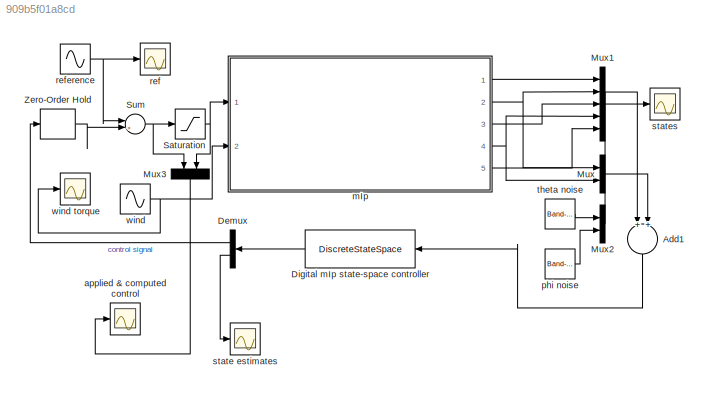
MODEL slx_909b5f01a8cd
KIND model
CONFIG AbsTol = auto
CONFIG EnableMultiTasking = off
CONFIG FixedStep = auto
CONFIG MaxStep = auto
CONFIG MinStep = auto
CONFIG RelTol = 1e-3
CONFIG SampleTimeConstraint = Unconstrained
CONFIG Solver = ode45
CONFIG SolverName = ode45
CONFIG StartTime = 0.0
CONFIG StopTime = 10.0
BLOCK [Sum] Add1
  InputSameDT = off
  Inputs = 2
  OutDataTypeStr = Inherit: Inherit via internal rule
  Ports = [2, 1]
  SaturateOnIntegerOverflow = off
BLOCK [Demux] Demux
  DisplayOption = bar
  Outputs = [1 5]
  Ports = [1, 2]
BLOCK [DiscreteStateSpace] Digital mIp state-space controller
  A = ALCBKLDmIp
  B = LLDmIp
  C = [-KLDmIp; eye(5)]
  D = zeros(6,2)
  SampleTime = 0.005
BLOCK [Mux] Mux
  DisplayOption = bar
  Inputs = 2
  Ports = [2, 1]
BLOCK [Mux] Mux1
  DisplayOption = bar
  Inputs = 5
  Ports = [5, 1]
BLOCK [Mux] Mux2
  DisplayOption = bar
  Inputs = 2
  Ports = [2, 1]
BLOCK [Mux] Mux3
  DisplayOption = bar
  Inputs = 2
  Ports = [2, 1]
BLOCK [Saturate] Saturation
  InputPortMap = u0
  LowerLimit = -6
  Ports = [1, 1]
  UpperLimit = 6
BLOCK [Sum] Sum
  IconShape = round
  InputSameDT = off
  Inputs = |++
  OutDataTypeStr = Inherit: Inherit via internal rule
  Ports = [2, 1]
  SaturateOnIntegerOverflow = off
BLOCK [ZeroOrderHold] Zero-Order Hold
  SampleTime = -1
  Tag = zero-order hold
BLOCK [Scope] applied & computed control
  Floating = off
  NumInputPorts = 1
  Ports = [1]
  ScopeSpecificationString = Simulink.scopes.TimeScopeBlockCfg('CurrentConfiguration', extmgr.ConfigurationSet(extmgr.Configuration('Core','General UI',true),extmgr.Configuration('Core','Source UI',true),extmgr.Configuration('Sources','WiredSimulink',true,'DataLoggingVariableName','ScopeData1'),extmgr.Configuration('Visuals','Time Domain',true,'SerializedDisplays',{struct('MinYLimReal','-9.65626','MaxYLimReal','12.964','YLabe...<+1397ch>
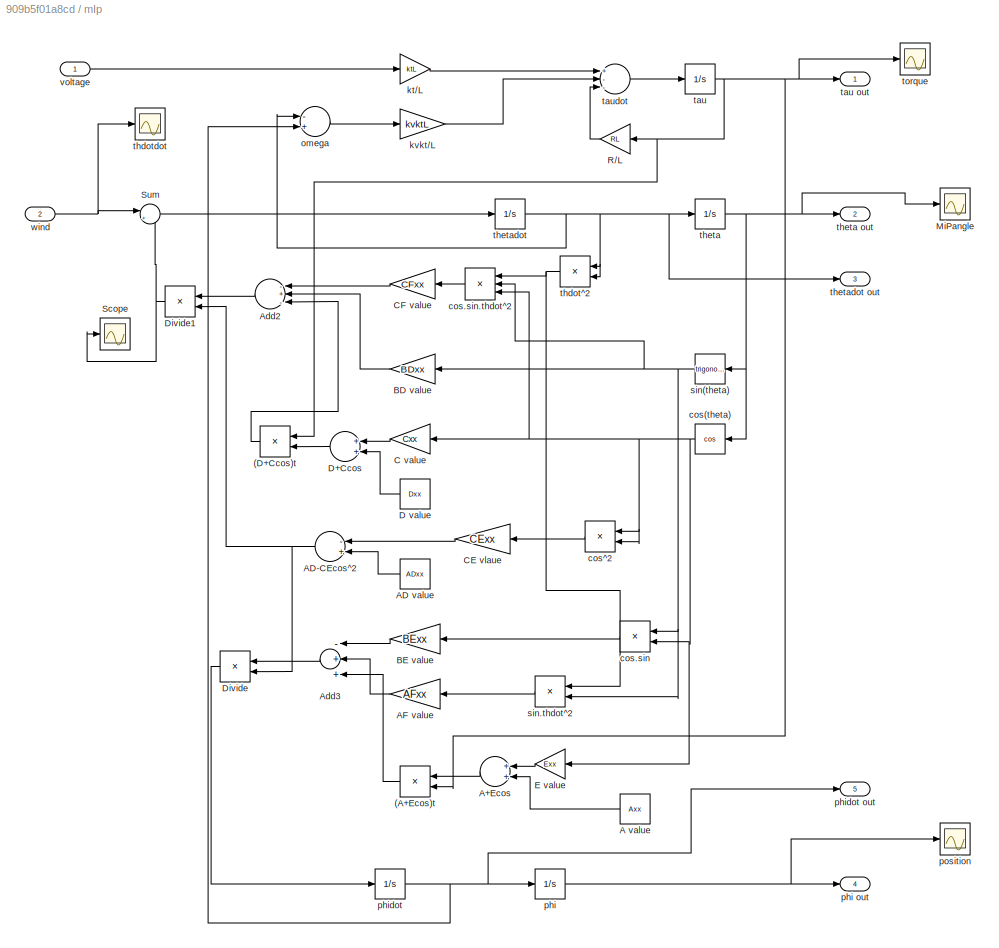
BLOCK [SubSystem] mIp
  Ports = [2, 5]
  RequestExecContextInheritance = off
BLOCK [Product] mIp/(A+Ecos)t
  InputSameDT = off
  OutDataTypeStr = Inherit: Inherit via internal rule
  Ports = [2, 1]
  RndMeth = Floor
  SaturateOnIntegerOverflow = off
BLOCK [Product] mIp/(D+Ccos)t
  InputSameDT = off
  OutDataTypeStr = Inherit: Inherit via internal rule
  Ports = [2, 1]
  RndMeth = Floor
  SaturateOnIntegerOverflow = off
BLOCK [Constant] mIp/A value
  Value = Axx
BLOCK [Sum] mIp/A+Ecos
  InputSameDT = off
  Inputs = 2
  OutDataTypeStr = Inherit: Inherit via internal rule
  Ports = [2, 1]
  SaturateOnIntegerOverflow = off
BLOCK [Constant] mIp/AD value
  Value = ADxx
BLOCK [Sum] mIp/AD-CEcos^2
  InputSameDT = off
  Inputs = -+
  OutDataTypeStr = Inherit: Inherit via internal rule
  Ports = [2, 1]
  SaturateOnIntegerOverflow = off
BLOCK [Gain] mIp/AF value
  Gain = AFxx
  OutDataTypeStr = Inherit: Inherit via internal rule
  ParamDataTypeStr = Inherit: Inherit via internal rule
  SaturateOnIntegerOverflow = off
BLOCK [Sum] mIp/Add2
  InputSameDT = off
  Inputs = -+-
  OutDataTypeStr = Inherit: Inherit via internal rule
  Ports = [3, 1]
  SaturateOnIntegerOverflow = off
BLOCK [Sum] mIp/Add3
  InputSameDT = off
  Inputs = -++
  OutDataTypeStr = Inherit: Inherit via internal rule
  Ports = [3, 1]
  SaturateOnIntegerOverflow = off
BLOCK [Gain] mIp/BD value
  Gain = BDxx
  OutDataTypeStr = Inherit: Inherit via internal rule
  ParamDataTypeStr = Inherit: Inherit via internal rule
  SaturateOnIntegerOverflow = off
BLOCK [Gain] mIp/BE value
  Gain = BExx
  OutDataTypeStr = Inherit: Inherit via internal rule
  ParamDataTypeStr = Inherit: Inherit via internal rule
  SaturateOnIntegerOverflow = off
BLOCK [Gain] mIp/C value
  Gain = Cxx
  OutDataTypeStr = Inherit: Inherit via internal rule
  ParamDataTypeStr = Inherit: Inherit via internal rule
  SaturateOnIntegerOverflow = off
BLOCK [Gain] mIp/CE vlaue
  Gain = CExx
  OutDataTypeStr = Inherit: Inherit via internal rule
  ParamDataTypeStr = Inherit: Inherit via internal rule
  SaturateOnIntegerOverflow = off
BLOCK [Gain] mIp/CF value
  Gain = CFxx
  OutDataTypeStr = Inherit: Inherit via internal rule
  ParamDataTypeStr = Inherit: Inherit via internal rule
  SaturateOnIntegerOverflow = off
BLOCK [Constant] mIp/D value
  Value = Dxx
BLOCK [Sum] mIp/D+Ccos
  InputSameDT = off
  OutDataTypeStr = Inherit: Inherit via internal rule
  Ports = [2, 1]
  SaturateOnIntegerOverflow = off
BLOCK [Product] mIp/Divide
  InputSameDT = off
  Inputs = */
  OutDataTypeStr = Inherit: Inherit via internal rule
  Ports = [2, 1]
  RndMeth = Floor
  SaturateOnIntegerOverflow = off
BLOCK [Product] mIp/Divide1
  InputSameDT = off
  Inputs = */
  OutDataTypeStr = Inherit: Inherit via internal rule
  Ports = [2, 1]
  RndMeth = Floor
  SaturateOnIntegerOverflow = off
BLOCK [Gain] mIp/E value
  Gain = Exx
  OutDataTypeStr = Inherit: Inherit via internal rule
  ParamDataTypeStr = Inherit: Inherit via internal rule
  SaturateOnIntegerOverflow = off
BLOCK [Scope] mIp/MiPangle
  Floating = off
  NumInputPorts = 1
  Ports = [1]
  ScopeSpecificationString = Simulink.scopes.TimeScopeBlockCfg('CurrentConfiguration', extmgr.ConfigurationSet(extmgr.Configuration('Core','General UI',true),extmgr.Configuration('Core','Source UI',true),extmgr.Configuration('Sources','WiredSimulink',true,'DataLoggingVariableName','ScopeData1','DataLoggingSaveFormat','StructureWithTime','DataLoggingDecimation','1','DataLoggingDecimateData',true),extmgr.Configuration('Visuals'...<+1640ch>
BLOCK [Gain] mIp/R//L
  Gain = RL
  OutDataTypeStr = Inherit: Inherit via internal rule
  ParamDataTypeStr = Inherit: Inherit via internal rule
  SaturateOnIntegerOverflow = off
BLOCK [Scope] mIp/Scope
  Floating = off
  NumInputPorts = 1
  Ports = [1]
  ScopeSpecificationString = Simulink.scopes.TimeScopeBlockCfg('CurrentConfiguration', extmgr.ConfigurationSet(extmgr.Configuration('Core','General UI',true),extmgr.Configuration('Core','Source UI',true),extmgr.Configuration('Sources','WiredSimulink',true,'DataLoggingVariableName','ScopeData2'),extmgr.Configuration('Visuals','Time Domain',true,'SerializedDisplays',{struct('MinYLimReal','-56.43443','MaxYLimReal','26.21355','YL...<+1372ch>
BLOCK [Sum] mIp/Sum
  IconShape = round
  InputSameDT = off
  Inputs = |++
  OutDataTypeStr = Inherit: Inherit via internal rule
  Ports = [2, 1]
  SaturateOnIntegerOverflow = off
BLOCK [Trigonometry] mIp/cos(theta)
  Operator = cos
  Ports = [1, 1]
BLOCK [Product] mIp/cos.sin
  InputSameDT = off
  OutDataTypeStr = Inherit: Inherit via internal rule
  Ports = [2, 1]
  RndMeth = Floor
  SaturateOnIntegerOverflow = off
BLOCK [Product] mIp/cos.sin.thdot^2
  InputSameDT = off
  Inputs = 3
  OutDataTypeStr = Inherit: Inherit via internal rule
  Ports = [3, 1]
  RndMeth = Floor
  SaturateOnIntegerOverflow = off
BLOCK [Product] mIp/cos^2
  InputSameDT = off
  OutDataTypeStr = Inherit: Inherit via internal rule
  Ports = [2, 1]
  RndMeth = Floor
  SaturateOnIntegerOverflow = off
BLOCK [Gain] mIp/kt//L
  Gain = ktL
  OutDataTypeStr = Inherit: Inherit via internal rule
  ParamDataTypeStr = Inherit: Inherit via internal rule
  SaturateOnIntegerOverflow = off
BLOCK [Gain] mIp/kvkt//L
  Gain = kvktL
  OutDataTypeStr = Inherit: Inherit via internal rule
  ParamDataTypeStr = Inherit: Inherit via internal rule
  SaturateOnIntegerOverflow = off
BLOCK [Sum] mIp/omega
  InputSameDT = off
  Inputs = -+
  OutDataTypeStr = Inherit: Inherit via internal rule
  Ports = [2, 1]
  SaturateOnIntegerOverflow = off
BLOCK [Integrator] mIp/phi
  Ports = [1, 1]
BLOCK [Outport] mIp/phi out
  IconDisplay = Port number
  Port = 4
BLOCK [Integrator] mIp/phidot
  Ports = [1, 1]
BLOCK [Outport] mIp/phidot out
  IconDisplay = Port number
  Port = 5
BLOCK [Scope] mIp/position
  Floating = off
  NumInputPorts = 1
  Ports = [1]
  ScopeSpecificationString = Simulink.scopes.TimeScopeBlockCfg('CurrentConfiguration', extmgr.ConfigurationSet(extmgr.Configuration('Core','General UI',true),extmgr.Configuration('Core','Source UI',true),extmgr.Configuration('Sources','WiredSimulink',true,'DataLoggingVariableName','ScopeData2','DataLoggingSaveFormat','StructureWithTime','DataLoggingDecimation','1','DataLoggingDecimateData',true),extmgr.Configuration('Visuals'...<+1639ch>
BLOCK [Trigonometry] mIp/sin(theta) 
  Ports = [1, 1]
BLOCK [Product] mIp/sin.thdot^2
  InputSameDT = off
  OutDataTypeStr = Inherit: Inherit via internal rule
  Ports = [2, 1]
  RndMeth = Floor
  SaturateOnIntegerOverflow = off
BLOCK [Integrator] mIp/tau
  Ports = [1, 1]
BLOCK [Outport] mIp/tau out
  IconDisplay = Port number
BLOCK [Sum] mIp/taudot
  InputSameDT = off
  Inputs = +--
  OutDataTypeStr = Inherit: Inherit via internal rule
  Ports = [3, 1]
  SaturateOnIntegerOverflow = off
BLOCK [Product] mIp/thdot^2
  InputSameDT = off
  OutDataTypeStr = Inherit: Inherit via internal rule
  Ports = [2, 1]
  RndMeth = Floor
  SaturateOnIntegerOverflow = off
BLOCK [Scope] mIp/thdotdot 
  Floating = off
  NumInputPorts = 1
  Ports = [1]
  ScopeSpecificationString = Simulink.scopes.TimeScopeBlockCfg('CurrentConfiguration', extmgr.ConfigurationSet(extmgr.Configuration('Core','General UI',true),extmgr.Configuration('Core','Source UI',true),extmgr.Configuration('Sources','WiredSimulink',true,'DataLoggingVariableName','ScopeData1'),extmgr.Configuration('Visuals','Time Domain',true,'SerializedDisplays',{struct('MinYLimReal','-0.125','MaxYLimReal','0.125','YLabelRe...<+1351ch>
BLOCK [Integrator] mIp/theta
  InitialCondition = 0.1
  Ports = [1, 1]
BLOCK [Outport] mIp/theta out
  IconDisplay = Port number
  Port = 2
BLOCK [Integrator] mIp/thetadot
  Ports = [1, 1]
BLOCK [Outport] mIp/thetadot out
  IconDisplay = Port number
  Port = 3
BLOCK [Scope] mIp/torque
  Floating = off
  NumInputPorts = 1
  Ports = [1]
  ScopeSpecificationString = Simulink.scopes.TimeScopeBlockCfg('CurrentConfiguration', extmgr.ConfigurationSet(extmgr.Configuration('Core','General UI',true),extmgr.Configuration('Core','Source UI',true),extmgr.Configuration('Sources','WiredSimulink',true,'DataLoggingSaveFormat','StructureWithTime','DataLoggingDecimation','1','DataLoggingDecimateData',true),extmgr.Configuration('Visuals','Time Domain',true,'SerializedDisplays...<+1599ch>
BLOCK [Inport] mIp/voltage
  IconDisplay = Port number
BLOCK [Inport] mIp/wind
  IconDisplay = Port number
  Port = 2
BLOCK [Reference] phi noise  REF=simulink/Sources/Band-Limited
White Noise
  Ports = [0, 1]
  SourceBlock = simulink/Sources/Band-Limited\nWhite Noise
  SourceProductBaseCode = SL
  SourceProductName = Simulink
  SourceType = Band-Limited White Noise.
BLOCK [Scope] ref
  Floating = off
  NumInputPorts = 1
  Ports = [1]
  ScopeSpecificationString = Simulink.scopes.TimeScopeBlockCfg('CurrentConfiguration', extmgr.ConfigurationSet(extmgr.Configuration('Core','General UI',true),extmgr.Configuration('Core','Source UI',true),extmgr.Configuration('Sources','WiredSimulink',true,'DataLoggingVariableName','ScopeData3'),extmgr.Configuration('Visuals','Time Domain',true),extmgr.Configuration('Tools','Plot Navigation',true),extmgr.Configuration('Tools',...<+40ch>
BLOCK [Sin] reference
  Amplitude = 0
  Ports = [0, 1]
  SampleTime = 0
BLOCK [Scope] state estimates 
  Floating = off
  NumInputPorts = 1
  Ports = [1]
  ScopeSpecificationString = Simulink.scopes.TimeScopeBlockCfg('CurrentConfiguration', extmgr.ConfigurationSet(extmgr.Configuration('Core','General UI',true),extmgr.Configuration('Core','Source UI',true),extmgr.Configuration('Sources','WiredSimulink',true,'DataLoggingVariableName','ScopeData1'),extmgr.Configuration('Visuals','Time Domain',true,'SerializedDisplays',{struct('MinYLimReal','-41.27069','MaxYLimReal','53.56293','YL...<+1448ch>
BLOCK [Scope] states
  Floating = off
  NumInputPorts = 1
  Ports = [1]
  ScopeSpecificationString = Simulink.scopes.TimeScopeBlockCfg('CurrentConfiguration', extmgr.ConfigurationSet(extmgr.Configuration('Core','General UI',true),extmgr.Configuration('Core','Source UI',true),extmgr.Configuration('Sources','WiredSimulink',true,'DataLoggingVariableName','ScopeData3','DataLoggingSaveFormat','StructureWithTime','DataLoggingDecimation','1','DataLoggingDecimateData',true),extmgr.Configuration('Visuals'...<+1716ch>
BLOCK [Reference] theta noise  REF=simulink/Sources/Band-Limited
White Noise
  Ports = [0, 1]
  SourceBlock = simulink/Sources/Band-Limited\nWhite Noise
  SourceProductBaseCode = SL
  SourceProductName = Simulink
  SourceType = Band-Limited White Noise.
BLOCK [Sin] wind
  Amplitude = 0
  Ports = [0, 1]
  SampleTime = 0
BLOCK [Scope] wind torque
  Floating = off
  NumInputPorts = 1
  Ports = [1]
  ScopeSpecificationString = Simulink.scopes.TimeScopeBlockCfg('CurrentConfiguration', extmgr.ConfigurationSet(extmgr.Configuration('Core','General UI',true),extmgr.Configuration('Core','Source UI',true),extmgr.Configuration('Sources','WiredSimulink',true,'DataLoggingVariableName','ScopeData4','DataLoggingSaveFormat','StructureWithTime','DataLoggingDecimation','1','DataLoggingDecimateData',true),extmgr.Configuration('Visuals'...<+1671ch>
LINE Add1:1 -> Digital mIp state-space controller:1
LINE Demux:1 -> Zero-Order Hold:1
LINE Demux:2 -> state estimates :1
LINE Digital mIp state-space controller:1 -> Demux:1
LINE Mux1:1 -> states:1
LINE Mux2:1 -> Add1:1
LINE Mux3:1 -> applied & computed control:1
LINE Mux:1 -> Add1:2
NET Saturation:1 -> Mux3:2, mIp:1
NET Sum:1 -> Mux3:1, Saturation:1
LINE Zero-Order Hold:1 -> Sum:2
LINE mIp/(A+Ecos)t:1 -> mIp/Add3:3
LINE mIp/(D+Ccos)t:1 -> mIp/Add2:3
LINE mIp/A value:1 -> mIp/A+Ecos:2
LINE mIp/A+Ecos:1 -> mIp/(A+Ecos)t:1
LINE mIp/AD value:1 -> mIp/AD-CEcos^2:2
NET mIp/AD-CEcos^2:1 -> mIp/Divide1:2, mIp/Divide:2
LINE mIp/AF value:1 -> mIp/Add3:2
LINE mIp/Add2:1 -> mIp/Divide1:1
LINE mIp/Add3:1 -> mIp/Divide:1
LINE mIp/BD value:1 -> mIp/Add2:2
LINE mIp/BE value:1 -> mIp/Add3:1
LINE mIp/C value:1 -> mIp/D+Ccos:1
LINE mIp/CE vlaue:1 -> mIp/AD-CEcos^2:1
LINE mIp/CF value:1 -> mIp/Add2:1
LINE mIp/D value:1 -> mIp/D+Ccos:2
LINE mIp/D+Ccos:1 -> mIp/(D+Ccos)t:2
NET mIp/Divide1:1 -> mIp/Scope:1, mIp/Sum:2
LINE mIp/Divide:1 -> mIp/phidot:1
LINE mIp/E value:1 -> mIp/A+Ecos:1
LINE mIp/R//L:1 -> mIp/taudot:3
LINE mIp/Sum:1 -> mIp/thetadot:1
NET mIp/cos(theta):1 -> mIp/C value:1, mIp/E value:1, mIp/cos.sin.thdot^2:3, mIp/cos.sin:2, mIp/cos^2:1, mIp/cos^2:2
LINE mIp/cos.sin.thdot^2:1 -> mIp/CF value:1
LINE mIp/cos.sin:1 -> mIp/BE value:1
LINE mIp/cos^2:1 -> mIp/CE vlaue:1
LINE mIp/kt//L:1 -> mIp/taudot:1
LINE mIp/kvkt//L:1 -> mIp/taudot:2
LINE mIp/omega:1 -> mIp/kvkt//L:1
NET mIp/phi:1 -> mIp/phi out:1, mIp/position:1
NET mIp/phidot:1 -> mIp/omega:2, mIp/phi:1, mIp/phidot out:1
NET mIp/sin(theta) :1 -> mIp/BD value:1, mIp/cos.sin.thdot^2:2, mIp/cos.sin:1, mIp/sin.thdot^2:2
LINE mIp/sin.thdot^2:1 -> mIp/AF value:1
NET mIp/tau:1 -> mIp/(A+Ecos)t:2, mIp/(D+Ccos)t:1, mIp/R//L:1, mIp/tau out:1, mIp/torque:1
LINE mIp/taudot:1 -> mIp/tau:1
NET mIp/thdot^2:1 -> mIp/cos.sin.thdot^2:1, mIp/sin.thdot^2:1
NET mIp/theta:1 -> mIp/MiPangle:1, mIp/cos(theta):1, mIp/sin(theta) :1, mIp/theta out:1
NET mIp/thetadot:1 -> mIp/omega:1, mIp/thdot^2:1, mIp/thdot^2:2, mIp/theta:1, mIp/thetadot out:1
LINE mIp/voltage:1 -> mIp/kt//L:1
NET mIp/wind:1 -> mIp/Sum:1, mIp/thdotdot :1
LINE mIp:1 -> Mux1:1
NET mIp:2 -> Mux1:2, Mux:1
LINE mIp:3 -> Mux1:3
NET mIp:4 -> Mux1:4, Mux:2
LINE mIp:5 -> Mux1:5
LINE phi noise:1 -> Mux2:2
NET reference:1 -> Sum:1, ref:1
LINE theta noise:1 -> Mux2:1
NET wind:1 -> mIp:2, wind torque:1
note: NET lines group one-source signal fan-out (src -> all destinations, sorted); 1:1 wires keep LINE
